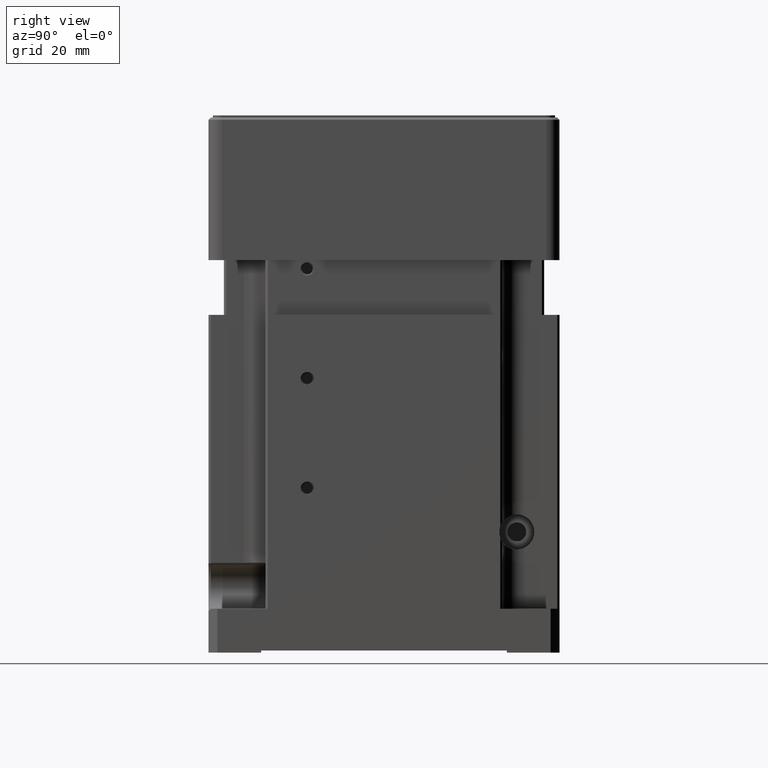
[diagram: clean part render]
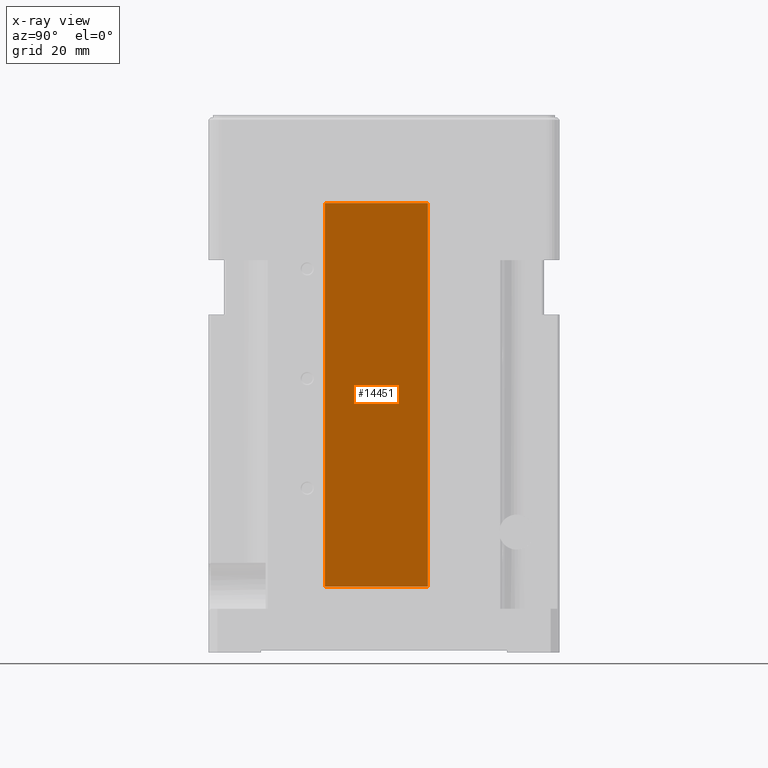
[diagram: x-ray — body ghosted, one internal face saturated and labeled with its STEP entity id]
A machine part, right view, then the same camera in x-ray: the body is ghosted and one INTERNAL B-rep face — a face not visible from any outside direction — is saturated and labeled: STEP entity #14451.
In plain terms, the highlighted planar face has unit normal (1, 0, 0).
Its self-contained STEP definition (entity closure, byte-faithful):
#492 = DIRECTION ( 'NONE',  ( 0.000000000000000000, 1.000000000000000000, 0.000000000000000000 ) ) ;
#747 = VECTOR ( 'NONE', #14251, 1000.000000000000000 ) ;
#2966 = ORIENTED_EDGE ( 'NONE', *, *, #16686, .T. ) ;
#2996 = FACE_OUTER_BOUND ( 'NONE', #32291, .T. ) ;
#3977 = LINE ( 'NONE', #18929, #15843 ) ;
#4371 = DIRECTION ( 'NONE',  ( 0.000000000000000000, -1.000000000000000000, 0.000000000000000000 ) ) ;
#4667 = EDGE_CURVE ( 'NONE', #28121, #22738, #3977, .T. ) ;
#5050 = LINE ( 'NONE', #16576, #747 ) ;
#7987 = CARTESIAN_POINT ( 'NONE',  ( 26.25000000000000000, -13.50000000000000000, 92.50000000000000000 ) ) ;
#9316 = AXIS2_PLACEMENT_3D ( 'NONE', #7987, #19699, #492 ) ;
#9753 = CARTESIAN_POINT ( 'NONE',  ( 26.25000000000000000, 10.00000000000000000, 92.50000000000000000 ) ) ;
#10949 = CARTESIAN_POINT ( 'NONE',  ( 26.25000000000000000, -13.50000000000000000, 5.049999999999999822 ) ) ;
#14251 = DIRECTION ( 'NONE',  ( 0.000000000000000000, 0.000000000000000000, -1.000000000000000000 ) ) ;
#14451 = ADVANCED_FACE ( 'NONE', ( #2996 ), #14699, .F. ) ;
#14699 = PLANE ( 'NONE',  #9316 ) ;
#15843 = VECTOR ( 'NONE', #27029, 1000.000000000000000 ) ;
#16576 = CARTESIAN_POINT ( 'NONE',  ( 26.25000000000000000, -13.50000000000000000, 92.50000000000000000 ) ) ;
#16686 = EDGE_CURVE ( 'NONE', #22738, #32718, #26111, .T. ) ;
#17574 = CARTESIAN_POINT ( 'NONE',  ( 26.25000000000000000, -13.50000000000000000, 92.50000000000000000 ) ) ;
#18060 = DIRECTION ( 'NONE',  ( 0.000000000000000000, -1.000000000000000000, 0.000000000000000000 ) ) ;
#18228 = VECTOR ( 'NONE', #18060, 1000.000000000000000 ) ;
#18929 = CARTESIAN_POINT ( 'NONE',  ( 26.25000000000000000, 10.00000000000000000, 92.50000000000000000 ) ) ;
#19266 = EDGE_CURVE ( 'NONE', #28121, #21029, #21249, .T. ) ;
#19699 = DIRECTION ( 'NONE',  ( 1.000000000000000000, 0.000000000000000000, 0.000000000000000000 ) ) ;
#20680 = ORIENTED_EDGE ( 'NONE', *, *, #19266, .F. ) ;
#21029 = VERTEX_POINT ( 'NONE', #17574 ) ;
#21249 = LINE ( 'NONE', #9753, #31178 ) ;
#22738 = VERTEX_POINT ( 'NONE', #36153 ) ;
#24274 = ORIENTED_EDGE ( 'NONE', *, *, #4667, .T. ) ;
#26111 = LINE ( 'NONE', #32072, #18228 ) ;
#26925 = ORIENTED_EDGE ( 'NONE', *, *, #32288, .F. ) ;
#27029 = DIRECTION ( 'NONE',  ( 0.000000000000000000, 0.000000000000000000, -1.000000000000000000 ) ) ;
#28121 = VERTEX_POINT ( 'NONE', #35920 ) ;
#31178 = VECTOR ( 'NONE', #4371, 1000.000000000000000 ) ;
#32072 = CARTESIAN_POINT ( 'NONE',  ( 26.25000000000000000, 10.00000000000000000, 5.049999999999999822 ) ) ;
#32288 = EDGE_CURVE ( 'NONE', #21029, #32718, #5050, .T. ) ;
#32291 = EDGE_LOOP ( 'NONE', ( #26925, #20680, #24274, #2966 ) ) ;
#32718 = VERTEX_POINT ( 'NONE', #10949 ) ;
#35920 = CARTESIAN_POINT ( 'NONE',  ( 26.25000000000000000, 10.00000000000000000, 92.50000000000000000 ) ) ;
#36153 = CARTESIAN_POINT ( 'NONE',  ( 26.25000000000000000, 10.00000000000000000, 5.049999999999999822 ) ) ;